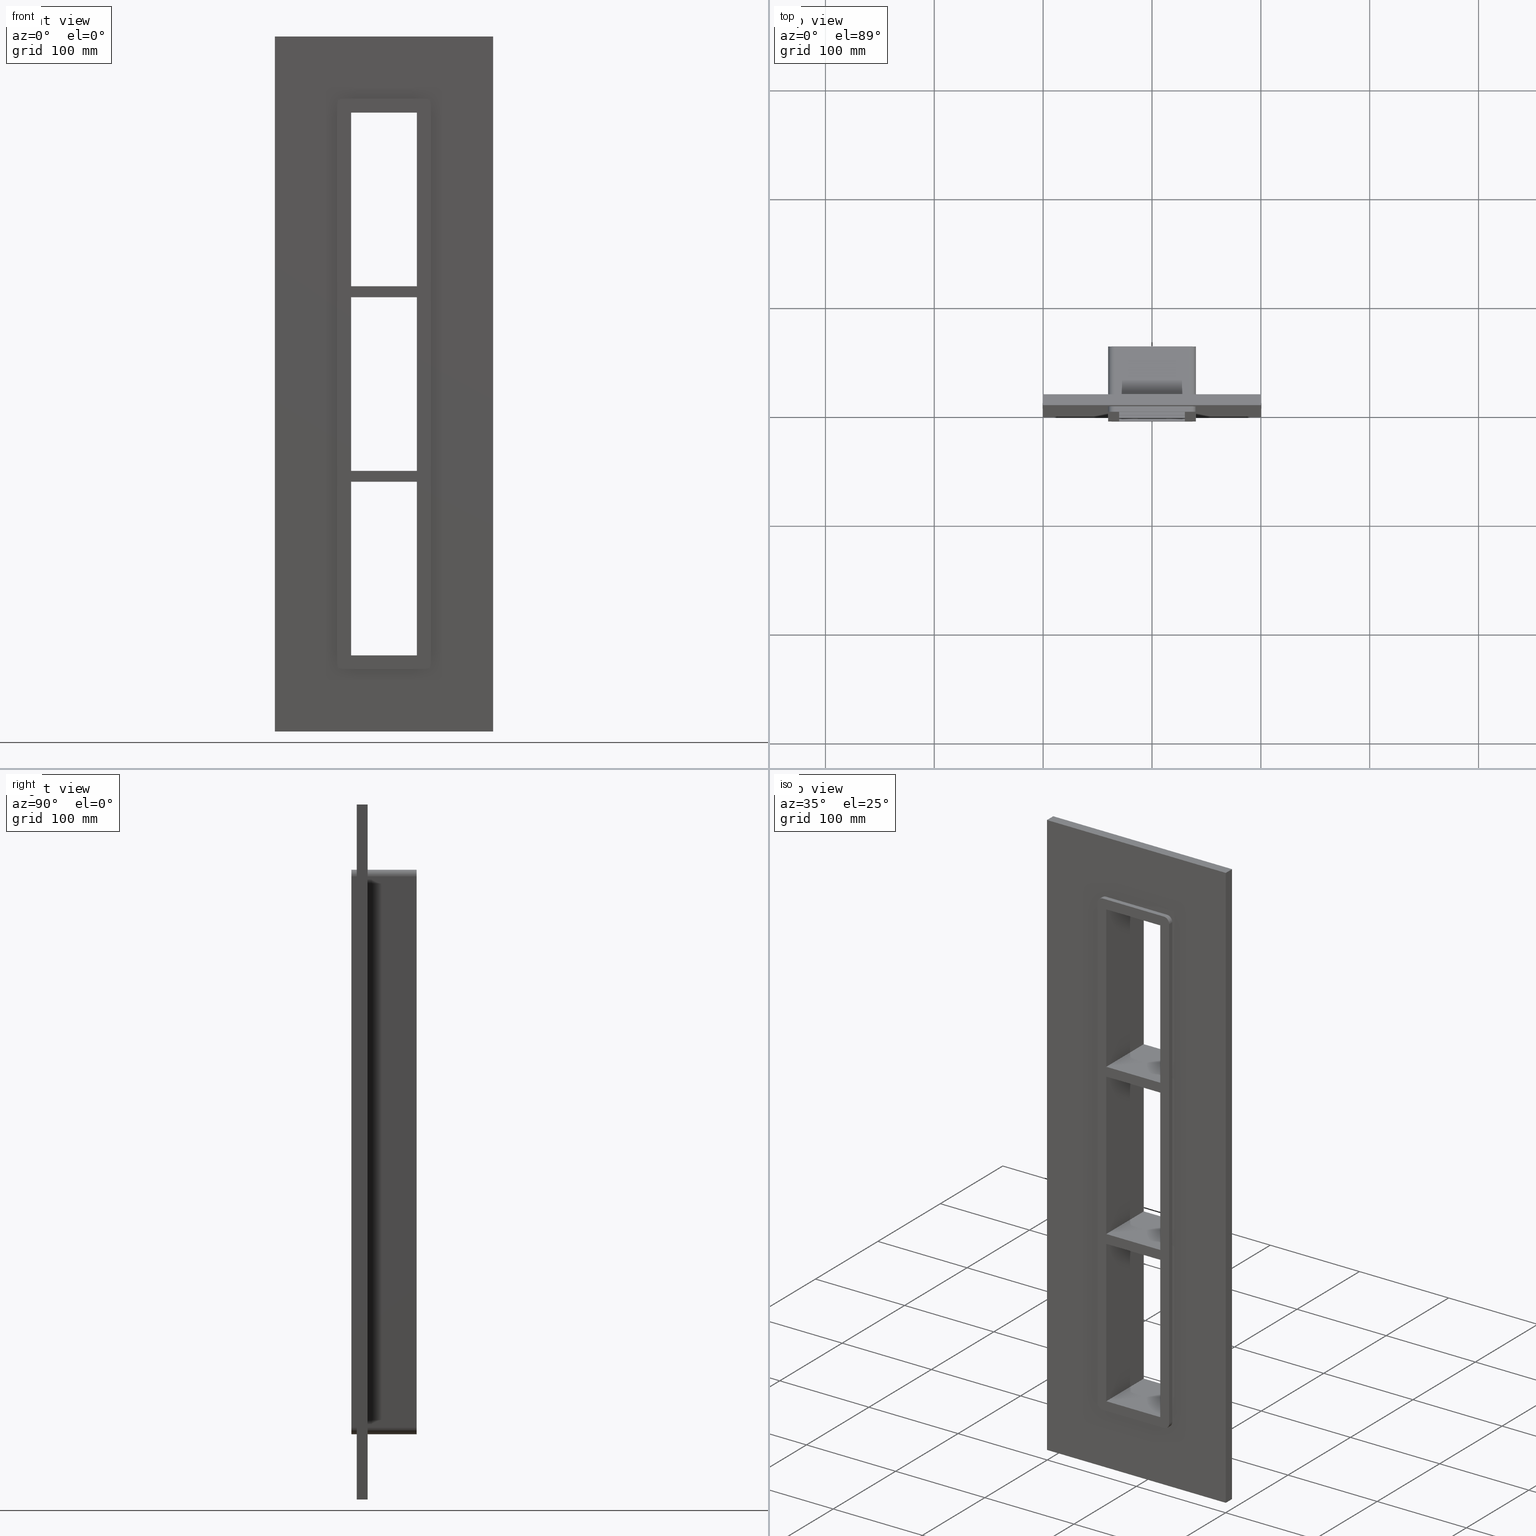
[diagram: canonical four-view strip — front | top / right | iso, engineering-drawing reading convention]
A machine part, canonical four-view strip (front | top / right | iso — engineering-drawing reading convention). The complete STEP part file that produces these views, byte-faithful:
ISO-10303-21;
HEADER;
/****************************************************************
 * Generated by software with PDElib inside                    *
 * PDElib Version v51a, created Wed 11/30/2011                  *
 * ITI Transcendata (http://www.transcendata.com/)              *
 ****************************************************************/
FILE_DESCRIPTION((''),'2;1');
FILE_NAME('C:\\RoxtecConfigurator\\CreatedFiles\\STEP\\SF3+3+3X1.stp','2012-12-06T16:40:32',(''),(''),'Autodesk Inventor 2013','Autodesk Inventor 2013','');
FILE_SCHEMA(('AUTOMOTIVE_DESIGN { 1 0 10303 214 1 1 1 1 }'));
ENDSEC;
DATA;
#5=APPLICATION_CONTEXT('automotive design');
#6=APPLICATION_PROTOCOL_DEFINITION('International Standard','automotive_design',2001,#5);
#7=PRODUCT_CONTEXT('',#5,'mechanical');
#8=PRODUCT('roxtec S_SF_G','roxtec S_SF_G',$,(#7));
#9=PRODUCT_RELATED_PRODUCT_CATEGORY('part',$,(#8));
#10=PRODUCT_DEFINITION_FORMATION('',$,#8);
#11=PRODUCT_DEFINITION_CONTEXT('part definition',#5,'design');
#12=PRODUCT_DEFINITION('',$,#10,#11);
#18=(NAMED_UNIT(*)PLANE_ANGLE_UNIT()SI_UNIT($,.RADIAN.));
#19=DIMENSIONAL_EXPONENTS(0.0,0.0,0.0,0.0,0.0,0.0,0.0);
#20=PLANE_ANGLE_MEASURE_WITH_UNIT(PLANE_ANGLE_MEASURE(0.0174532925),#18);
#24=(CONVERSION_BASED_UNIT('DEGREE',#20)NAMED_UNIT(#19)PLANE_ANGLE_UNIT());
#28=(NAMED_UNIT(*)SI_UNIT($,.STERADIAN.)SOLID_ANGLE_UNIT());
#32=(LENGTH_UNIT()NAMED_UNIT(*)SI_UNIT(.MILLI.,.METRE.));
#34=UNCERTAINTY_MEASURE_WITH_UNIT(LENGTH_MEASURE(0.01),#32,'DISTANCE_ACCURACY_VALUE','');
#36=(GEOMETRIC_REPRESENTATION_CONTEXT(3)GLOBAL_UNCERTAINTY_ASSIGNED_CONTEXT((#34))GLOBAL_UNIT_ASSIGNED_CONTEXT((#24,#28,#32))REPRESENTATION_CONTEXT('None','None'));
#37=AXIS2_PLACEMENT_3D('',#38,#39,#40);
#38=CARTESIAN_POINT('',(0.0,0.0,0.0));
#39=DIRECTION('',(0.0,0.0,1.0));
#40=DIRECTION('',(1.0,0.0,0.0));
#41=SHAPE_REPRESENTATION('',(#37),#36);
#42=PRODUCT_DEFINITION_SHAPE('','',#12);
#43=SHAPE_DEFINITION_REPRESENTATION(#42,#41);
#49=(NAMED_UNIT(*)PLANE_ANGLE_UNIT()SI_UNIT($,.RADIAN.));
#50=DIMENSIONAL_EXPONENTS(0.0,0.0,0.0,0.0,0.0,0.0,0.0);
#51=PLANE_ANGLE_MEASURE_WITH_UNIT(PLANE_ANGLE_MEASURE(0.0174532925),#49);
#55=(CONVERSION_BASED_UNIT('DEGREE',#51)NAMED_UNIT(#50)PLANE_ANGLE_UNIT());
#59=(NAMED_UNIT(*)SI_UNIT($,.STERADIAN.)SOLID_ANGLE_UNIT());
#63=(LENGTH_UNIT()NAMED_UNIT(*)SI_UNIT(.MILLI.,.METRE.));
#65=UNCERTAINTY_MEASURE_WITH_UNIT(LENGTH_MEASURE(0.000001),#63,'DISTANCE_ACCURACY_VALUE','');
#67=(GEOMETRIC_REPRESENTATION_CONTEXT(3)GLOBAL_UNCERTAINTY_ASSIGNED_CONTEXT((#65))GLOBAL_UNIT_ASSIGNED_CONTEXT((#55,#59,#63))REPRESENTATION_CONTEXT('','3D'));
#68=CARTESIAN_POINT('',(30.249999999999986,-5.0,79.750000000000085));
#69=DIRECTION('',(0.0,0.0,-1.0));
#70=DIRECTION('',(-1.0,0.0,0.0));
#71=AXIS2_PLACEMENT_3D('',#68,#69,#70);
#72=PLANE('',#71);
#73=CARTESIAN_POINT('',(30.249999999999986,-5.0,79.750000000000085));
#74=VERTEX_POINT('',#73);
#75=CARTESIAN_POINT('',(-30.250000000002078,-5.0,79.750000000000938));
#76=VERTEX_POINT('',#75);
#77=CARTESIAN_POINT('',(30.249999999999986,-5.0,79.750000000000085));
#78=DIRECTION('',(-1.0,0.0,0.0));
#79=VECTOR('',#78,60.500000000002068);
#80=LINE('',#77,#79);
#81=EDGE_CURVE('',#74,#76,#80,.T.);
#82=ORIENTED_EDGE('',*,*,#81,.T.);
#83=CARTESIAN_POINT('',(-30.250000000002078,55.0,79.750000000000938));
#84=VERTEX_POINT('',#83);
#85=CARTESIAN_POINT('',(-30.250000000000021,55.0,79.750000000000938));
#86=DIRECTION('',(0.0,-1.0,0.0));
#87=VECTOR('',#86,60.0);
#88=LINE('',#85,#87);
#89=EDGE_CURVE('',#84,#76,#88,.T.);
#90=ORIENTED_EDGE('',*,*,#89,.F.);
#91=CARTESIAN_POINT('',(30.249999999999986,55.0,79.750000000000085));
#92=VERTEX_POINT('',#91);
#93=CARTESIAN_POINT('',(30.249999999999986,55.0,79.750000000000085));
#94=DIRECTION('',(-1.0,0.0,0.0));
#95=VECTOR('',#94,60.500000000002068);
#96=LINE('',#93,#95);
#97=EDGE_CURVE('',#92,#84,#96,.T.);
#98=ORIENTED_EDGE('',*,*,#97,.F.);
#99=CARTESIAN_POINT('',(30.249999999999986,-5.0,79.750000000000085));
#100=DIRECTION('',(0.0,1.0,0.0));
#101=VECTOR('',#100,60.0);
#102=LINE('',#99,#101);
#103=EDGE_CURVE('',#74,#92,#102,.T.);
#104=ORIENTED_EDGE('',*,*,#103,.F.);
#105=EDGE_LOOP('',(#82,#90,#98,#104));
#106=FACE_OUTER_BOUND('',#105,.T.);
#107=ADVANCED_FACE('',(#106),#72,.T.);
#108=CARTESIAN_POINT('',(-30.250000000000021,-5.0,89.750000000000085));
#109=DIRECTION('',(0.0,0.0,1.0));
#110=DIRECTION('',(1.0,0.0,0.0));
#111=AXIS2_PLACEMENT_3D('',#108,#109,#110);
#112=PLANE('',#111);
#113=CARTESIAN_POINT('',(-30.250000000000021,-5.0,89.750000000000085));
#114=VERTEX_POINT('',#113);
#115=CARTESIAN_POINT('',(30.250000000000654,-5.0,89.750000000000938));
#116=VERTEX_POINT('',#115);
#117=CARTESIAN_POINT('',(-30.250000000000021,-5.0,89.750000000000085));
#118=DIRECTION('',(1.0,0.0,0.0));
#119=VECTOR('',#118,60.500000000000675);
#120=LINE('',#117,#119);
#121=EDGE_CURVE('',#114,#116,#120,.T.);
#122=ORIENTED_EDGE('',*,*,#121,.T.);
#123=CARTESIAN_POINT('',(30.250000000000654,55.0,89.750000000000938));
#124=VERTEX_POINT('',#123);
#125=CARTESIAN_POINT('',(30.249999999999986,55.0,89.750000000000938));
#126=DIRECTION('',(0.0,-1.0,0.0));
#127=VECTOR('',#126,60.0);
#128=LINE('',#125,#127);
#129=EDGE_CURVE('',#124,#116,#128,.T.);
#130=ORIENTED_EDGE('',*,*,#129,.F.);
#131=CARTESIAN_POINT('',(-30.250000000000021,55.0,89.750000000000085));
#132=VERTEX_POINT('',#131);
#133=CARTESIAN_POINT('',(-30.250000000000021,55.0,89.750000000000085));
#134=DIRECTION('',(1.0,0.0,0.0));
#135=VECTOR('',#134,60.500000000000675);
#136=LINE('',#133,#135);
#137=EDGE_CURVE('',#132,#124,#136,.T.);
#138=ORIENTED_EDGE('',*,*,#137,.F.);
#139=CARTESIAN_POINT('',(-30.250000000000021,-5.0,89.750000000000085));
#140=DIRECTION('',(0.0,1.0,0.0));
#141=VECTOR('',#140,60.0);
#142=LINE('',#139,#141);
#143=EDGE_CURVE('',#114,#132,#142,.T.);
#144=ORIENTED_EDGE('',*,*,#143,.F.);
#145=EDGE_LOOP('',(#122,#130,#138,#144));
#146=FACE_OUTER_BOUND('',#145,.T.);
#147=ADVANCED_FACE('',(#146),#112,.T.);
#148=CARTESIAN_POINT('',(-30.250000000000021,0.0,-249.24999999999997));
#149=DIRECTION('',(-1.0,0.0,0.0));
#150=DIRECTION('',(0.0,0.0,1.0));
#151=AXIS2_PLACEMENT_3D('',#148,#149,#150);
#152=PLANE('',#151);
#153=ORIENTED_EDGE('',*,*,#143,.T.);
#154=CARTESIAN_POINT('',(-30.250000000000021,55.0,249.25000000000006));
#155=VERTEX_POINT('',#154);
#156=CARTESIAN_POINT('',(-30.250000000000021,55.0,249.25000000000006));
#157=DIRECTION('',(0.0,0.0,-1.0));
#158=VECTOR('',#157,159.49999999999997);
#159=LINE('',#156,#158);
#160=EDGE_CURVE('',#155,#132,#159,.T.);
#161=ORIENTED_EDGE('',*,*,#160,.F.);
#162=CARTESIAN_POINT('',(-30.250000000000021,-5.0,249.25000000000006));
#163=VERTEX_POINT('',#162);
#164=CARTESIAN_POINT('',(-30.250000000000021,-5.0,249.25000000000006));
#165=DIRECTION('',(0.0,1.0,0.0));
#166=VECTOR('',#165,60.0);
#167=LINE('',#164,#166);
#168=EDGE_CURVE('',#163,#155,#167,.T.);
#169=ORIENTED_EDGE('',*,*,#168,.F.);
#170=CARTESIAN_POINT('',(-30.250000000000021,-5.0,89.750000000000085));
#171=DIRECTION('',(0.0,0.0,1.0));
#172=VECTOR('',#171,159.49999999999997);
#173=LINE('',#170,#172);
#174=EDGE_CURVE('',#114,#163,#173,.T.);
#175=ORIENTED_EDGE('',*,*,#174,.F.);
#176=EDGE_LOOP('',(#153,#161,#169,#175));
#177=FACE_OUTER_BOUND('',#176,.T.);
#178=ADVANCED_FACE('',(#177),#152,.F.);
#179=CARTESIAN_POINT('',(30.249999999999986,0.0,249.25000000000006));
#180=DIRECTION('',(1.0,0.0,0.0));
#181=DIRECTION('',(0.0,0.0,-1.0));
#182=AXIS2_PLACEMENT_3D('',#179,#180,#181);
#183=PLANE('',#182);
#184=ORIENTED_EDGE('',*,*,#103,.T.);
#185=CARTESIAN_POINT('',(30.250000000000654,55.0,-79.749999999999091));
#186=VERTEX_POINT('',#185);
#187=CARTESIAN_POINT('',(30.249999999999986,55.0,-79.749999999999091));
#188=DIRECTION('',(0.0,0.0,1.0));
#189=VECTOR('',#188,159.49999999999918);
#190=LINE('',#187,#189);
#191=EDGE_CURVE('',#186,#92,#190,.T.);
#192=ORIENTED_EDGE('',*,*,#191,.F.);
#193=CARTESIAN_POINT('',(30.250000000000654,-5.0,-79.749999999999091));
#194=VERTEX_POINT('',#193);
#195=CARTESIAN_POINT('',(30.249999999999986,55.0,-79.749999999999091));
#196=DIRECTION('',(0.0,-1.0,0.0));
#197=VECTOR('',#196,60.0);
#198=LINE('',#195,#197);
#199=EDGE_CURVE('',#186,#194,#198,.T.);
#200=ORIENTED_EDGE('',*,*,#199,.T.);
#201=CARTESIAN_POINT('',(30.249999999999986,-5.0,79.750000000000085));
#202=DIRECTION('',(0.0,0.0,-1.0));
#203=VECTOR('',#202,159.49999999999918);
#204=LINE('',#201,#203);
#205=EDGE_CURVE('',#74,#194,#204,.T.);
#206=ORIENTED_EDGE('',*,*,#205,.F.);
#207=EDGE_LOOP('',(#184,#192,#200,#206));
#208=FACE_OUTER_BOUND('',#207,.T.);
#209=ADVANCED_FACE('',(#208),#183,.F.);
#210=CARTESIAN_POINT('',(30.249999999999986,0.0,249.25000000000006));
#211=DIRECTION('',(1.0,0.0,0.0));
#212=DIRECTION('',(0.0,0.0,-1.0));
#213=AXIS2_PLACEMENT_3D('',#210,#211,#212);
#214=PLANE('',#213);
#215=ORIENTED_EDGE('',*,*,#129,.T.);
#216=CARTESIAN_POINT('',(30.249999999999986,-5.0,249.25000000000006));
#217=VERTEX_POINT('',#216);
#218=CARTESIAN_POINT('',(30.249999999999986,-5.0,249.25000000000006));
#219=DIRECTION('',(0.0,0.0,-1.0));
#220=VECTOR('',#219,159.49999999999912);
#221=LINE('',#218,#220);
#222=EDGE_CURVE('',#217,#116,#221,.T.);
#223=ORIENTED_EDGE('',*,*,#222,.F.);
#224=CARTESIAN_POINT('',(30.249999999999986,55.0,249.25000000000006));
#225=VERTEX_POINT('',#224);
#226=CARTESIAN_POINT('',(30.249999999999986,-5.0,249.25000000000006));
#227=DIRECTION('',(0.0,1.0,0.0));
#228=VECTOR('',#227,60.0);
#229=LINE('',#226,#228);
#230=EDGE_CURVE('',#217,#225,#229,.T.);
#231=ORIENTED_EDGE('',*,*,#230,.T.);
#232=CARTESIAN_POINT('',(30.249999999999986,55.0,89.750000000000938));
#233=DIRECTION('',(0.0,0.0,1.0));
#234=VECTOR('',#233,159.49999999999912);
#235=LINE('',#232,#234);
#236=EDGE_CURVE('',#124,#225,#235,.T.);
#237=ORIENTED_EDGE('',*,*,#236,.F.);
#238=EDGE_LOOP('',(#215,#223,#231,#237));
#239=FACE_OUTER_BOUND('',#238,.T.);
#240=ADVANCED_FACE('',(#239),#214,.F.);
#241=CARTESIAN_POINT('',(30.249999999999986,-5.0,-89.749999999999943));
#242=DIRECTION('',(0.0,0.0,-1.0));
#243=DIRECTION('',(-1.0,0.0,0.0));
#244=AXIS2_PLACEMENT_3D('',#241,#242,#243);
#245=PLANE('',#244);
#246=CARTESIAN_POINT('',(30.249999999999986,-5.0,-89.749999999999943));
#247=VERTEX_POINT('',#246);
#248=CARTESIAN_POINT('',(-30.250000000002078,-5.0,-89.749999999999091));
#249=VERTEX_POINT('',#248);
#250=CARTESIAN_POINT('',(30.249999999999986,-5.0,-89.749999999999943));
#251=DIRECTION('',(-1.0,0.0,0.0));
#252=VECTOR('',#251,60.500000000002068);
#253=LINE('',#250,#252);
#254=EDGE_CURVE('',#247,#249,#253,.T.);
#255=ORIENTED_EDGE('',*,*,#254,.T.);
#256=CARTESIAN_POINT('',(-30.250000000002078,55.0,-89.749999999999091));
#257=VERTEX_POINT('',#256);
#258=CARTESIAN_POINT('',(-30.250000000000021,55.0,-89.749999999999091));
#259=DIRECTION('',(0.0,-1.0,0.0));
#260=VECTOR('',#259,60.0);
#261=LINE('',#258,#260);
#262=EDGE_CURVE('',#257,#249,#261,.T.);
#263=ORIENTED_EDGE('',*,*,#262,.F.);
#264=CARTESIAN_POINT('',(30.249999999999986,55.0,-89.749999999999943));
#265=VERTEX_POINT('',#264);
#266=CARTESIAN_POINT('',(30.249999999999986,55.0,-89.749999999999943));
#267=DIRECTION('',(-1.0,0.0,0.0));
#268=VECTOR('',#267,60.500000000002068);
#269=LINE('',#266,#268);
#270=EDGE_CURVE('',#265,#257,#269,.T.);
#271=ORIENTED_EDGE('',*,*,#270,.F.);
#272=CARTESIAN_POINT('',(30.249999999999986,-5.0,-89.749999999999943));
#273=DIRECTION('',(0.0,1.0,0.0));
#274=VECTOR('',#273,60.0);
#275=LINE('',#272,#274);
#276=EDGE_CURVE('',#247,#265,#275,.T.);
#277=ORIENTED_EDGE('',*,*,#276,.F.);
#278=EDGE_LOOP('',(#255,#263,#271,#277));
#279=FACE_OUTER_BOUND('',#278,.T.);
#280=ADVANCED_FACE('',(#279),#245,.T.);
#281=CARTESIAN_POINT('',(-30.250000000000021,-5.0,-79.749999999999943));
#282=DIRECTION('',(0.0,0.0,1.0));
#283=DIRECTION('',(1.0,0.0,0.0));
#284=AXIS2_PLACEMENT_3D('',#281,#282,#283);
#285=PLANE('',#284);
#286=CARTESIAN_POINT('',(-30.250000000000021,-5.0,-79.749999999999943));
#287=VERTEX_POINT('',#286);
#288=CARTESIAN_POINT('',(-30.250000000000021,-5.0,-79.749999999999943));
#289=DIRECTION('',(1.0,0.0,0.0));
#290=VECTOR('',#289,60.500000000000675);
#291=LINE('',#288,#290);
#292=EDGE_CURVE('',#287,#194,#291,.T.);
#293=ORIENTED_EDGE('',*,*,#292,.T.);
#294=ORIENTED_EDGE('',*,*,#199,.F.);
#295=CARTESIAN_POINT('',(-30.250000000000021,55.0,-79.749999999999943));
#296=VERTEX_POINT('',#295);
#297=CARTESIAN_POINT('',(-30.250000000000021,55.0,-79.749999999999943));
#298=DIRECTION('',(1.0,0.0,0.0));
#299=VECTOR('',#298,60.500000000000675);
#300=LINE('',#297,#299);
#301=EDGE_CURVE('',#296,#186,#300,.T.);
#302=ORIENTED_EDGE('',*,*,#301,.F.);
#303=CARTESIAN_POINT('',(-30.250000000000021,-5.0,-79.749999999999943));
#304=DIRECTION('',(0.0,1.0,0.0));
#305=VECTOR('',#304,60.0);
#306=LINE('',#303,#305);
#307=EDGE_CURVE('',#287,#296,#306,.T.);
#308=ORIENTED_EDGE('',*,*,#307,.F.);
#309=EDGE_LOOP('',(#293,#294,#302,#308));
#310=FACE_OUTER_BOUND('',#309,.T.);
#311=ADVANCED_FACE('',(#310),#285,.T.);
#312=CARTESIAN_POINT('',(-30.250000000000021,0.0,-249.24999999999997));
#313=DIRECTION('',(-1.0,0.0,0.0));
#314=DIRECTION('',(0.0,0.0,1.0));
#315=AXIS2_PLACEMENT_3D('',#312,#313,#314);
#316=PLANE('',#315);
#317=ORIENTED_EDGE('',*,*,#89,.T.);
#318=CARTESIAN_POINT('',(-30.250000000000021,-5.0,-79.749999999999943));
#319=DIRECTION('',(0.0,0.0,1.0));
#320=VECTOR('',#319,159.50000000000088);
#321=LINE('',#318,#320);
#322=EDGE_CURVE('',#287,#76,#321,.T.);
#323=ORIENTED_EDGE('',*,*,#322,.F.);
#324=ORIENTED_EDGE('',*,*,#307,.T.);
#325=CARTESIAN_POINT('',(-30.250000000000021,55.0,79.750000000000938));
#326=DIRECTION('',(0.0,0.0,-1.0));
#327=VECTOR('',#326,159.50000000000088);
#328=LINE('',#325,#327);
#329=EDGE_CURVE('',#84,#296,#328,.T.);
#330=ORIENTED_EDGE('',*,*,#329,.F.);
#331=EDGE_LOOP('',(#317,#323,#324,#330));
#332=FACE_OUTER_BOUND('',#331,.T.);
#333=ADVANCED_FACE('',(#332),#316,.F.);
#334=CARTESIAN_POINT('',(30.249999999999986,0.0,249.25000000000006));
#335=DIRECTION('',(1.0,0.0,0.0));
#336=DIRECTION('',(0.0,0.0,-1.0));
#337=AXIS2_PLACEMENT_3D('',#334,#335,#336);
#338=PLANE('',#337);
#339=ORIENTED_EDGE('',*,*,#276,.T.);
#340=CARTESIAN_POINT('',(30.249999999999986,55.0,-249.24999999999997));
#341=VERTEX_POINT('',#340);
#342=CARTESIAN_POINT('',(30.249999999999986,55.0,-249.24999999999994));
#343=DIRECTION('',(0.0,0.0,1.0));
#344=VECTOR('',#343,159.5);
#345=LINE('',#342,#344);
#346=EDGE_CURVE('',#341,#265,#345,.T.);
#347=ORIENTED_EDGE('',*,*,#346,.F.);
#348=CARTESIAN_POINT('',(30.249999999999986,-5.0,-249.24999999999997));
#349=VERTEX_POINT('',#348);
#350=CARTESIAN_POINT('',(30.249999999999986,55.0,-249.24999999999997));
#351=DIRECTION('',(0.0,-1.0,0.0));
#352=VECTOR('',#351,60.0);
#353=LINE('',#350,#352);
#354=EDGE_CURVE('',#341,#349,#353,.T.);
#355=ORIENTED_EDGE('',*,*,#354,.T.);
#356=CARTESIAN_POINT('',(30.249999999999986,-5.0,-89.749999999999943));
#357=DIRECTION('',(0.0,0.0,-1.0));
#358=VECTOR('',#357,159.5);
#359=LINE('',#356,#358);
#360=EDGE_CURVE('',#247,#349,#359,.T.);
#361=ORIENTED_EDGE('',*,*,#360,.F.);
#362=EDGE_LOOP('',(#339,#347,#355,#361));
#363=FACE_OUTER_BOUND('',#362,.T.);
#364=ADVANCED_FACE('',(#363),#338,.F.);
#365=CARTESIAN_POINT('',(5.081354E-015,10.0,1.524406E-014));
#366=DIRECTION('',(0.0,1.0,0.0));
#367=DIRECTION('',(0.0,0.0,1.0));
#368=AXIS2_PLACEMENT_3D('',#365,#366,#367);
#369=PLANE('',#368);
#370=CARTESIAN_POINT('',(100.24999999999999,10.0,-319.25));
#371=VERTEX_POINT('',#370);
#372=CARTESIAN_POINT('',(-100.24999999999999,10.0,-319.25));
#373=VERTEX_POINT('',#372);
#374=CARTESIAN_POINT('',(100.24999999999999,10.0,-319.25));
#375=DIRECTION('',(-1.0,0.0,0.0));
#376=VECTOR('',#375,200.49999999999997);
#377=LINE('',#374,#376);
#378=EDGE_CURVE('',#371,#373,#377,.T.);
#379=ORIENTED_EDGE('',*,*,#378,.T.);
#380=CARTESIAN_POINT('',(-100.24999999999999,10.0,319.25000000000006));
#381=VERTEX_POINT('',#380);
#382=CARTESIAN_POINT('',(-100.24999999999997,10.0,-319.25));
#383=DIRECTION('',(0.0,0.0,1.0));
#384=VECTOR('',#383,638.50000000000011);
#385=LINE('',#382,#384);
#386=EDGE_CURVE('',#373,#381,#385,.T.);
#387=ORIENTED_EDGE('',*,*,#386,.T.);
#388=CARTESIAN_POINT('',(100.24999999999999,10.0,319.25000000000006));
#389=VERTEX_POINT('',#388);
#390=CARTESIAN_POINT('',(-100.24999999999997,10.0,319.25000000000006));
#391=DIRECTION('',(1.0,0.0,0.0));
#392=VECTOR('',#391,200.49999999999997);
#393=LINE('',#390,#392);
#394=EDGE_CURVE('',#381,#389,#393,.T.);
#395=ORIENTED_EDGE('',*,*,#394,.T.);
#396=CARTESIAN_POINT('',(100.24999999999999,10.0,319.25000000000006));
#397=DIRECTION('',(0.0,0.0,-1.0));
#398=VECTOR('',#397,638.50000000000011);
#399=LINE('',#396,#398);
#400=EDGE_CURVE('',#389,#371,#399,.T.);
#401=ORIENTED_EDGE('',*,*,#400,.T.);
#402=EDGE_LOOP('',(#379,#387,#395,#401));
#403=FACE_OUTER_BOUND('',#402,.T.);
#404=CARTESIAN_POINT('',(34.250000000000007,10.0,259.25000000000006));
#405=VERTEX_POINT('',#404);
#406=CARTESIAN_POINT('',(40.249999999999986,10.0,253.25000000000003));
#407=VERTEX_POINT('',#406);
#408=CARTESIAN_POINT('',(34.250000000000007,10.0,253.25000000000003));
#409=DIRECTION('',(0.0,1.0,0.0));
#410=DIRECTION('',(0.0,0.0,1.0));
#411=AXIS2_PLACEMENT_3D('',#408,#409,#410);
#412=CIRCLE('',#411,6.000000000000014);
#413=EDGE_CURVE('',#405,#407,#412,.T.);
#414=ORIENTED_EDGE('',*,*,#413,.F.);
#415=CARTESIAN_POINT('',(-34.250000000000043,10.0,259.25000000000006));
#416=VERTEX_POINT('',#415);
#417=CARTESIAN_POINT('',(-34.250000000000043,10.0,259.25000000000006));
#418=DIRECTION('',(1.0,0.0,0.0));
#419=VECTOR('',#418,68.500000000000057);
#420=LINE('',#417,#419);
#421=EDGE_CURVE('',#416,#405,#420,.T.);
#422=ORIENTED_EDGE('',*,*,#421,.F.);
#423=CARTESIAN_POINT('',(-40.250000000000021,10.0,253.25000000000003));
#424=VERTEX_POINT('',#423);
#425=CARTESIAN_POINT('',(-34.250000000000043,10.0,253.25000000000003));
#426=DIRECTION('',(0.0,1.0,0.0));
#427=DIRECTION('',(-1.0,0.0,0.0));
#428=AXIS2_PLACEMENT_3D('',#425,#426,#427);
#429=CIRCLE('',#428,6.000000000000014);
#430=EDGE_CURVE('',#424,#416,#429,.T.);
#431=ORIENTED_EDGE('',*,*,#430,.F.);
#432=CARTESIAN_POINT('',(-40.250000000000021,10.0,-253.24999999999989));
#433=VERTEX_POINT('',#432);
#434=CARTESIAN_POINT('',(-40.250000000000021,10.0,-253.24999999999989));
#435=DIRECTION('',(0.0,0.0,1.0));
#436=VECTOR('',#435,506.49999999999994);
#437=LINE('',#434,#436);
#438=EDGE_CURVE('',#433,#424,#437,.T.);
#439=ORIENTED_EDGE('',*,*,#438,.F.);
#440=CARTESIAN_POINT('',(-34.250000000000043,10.0,-259.25));
#441=VERTEX_POINT('',#440);
#442=CARTESIAN_POINT('',(-34.250000000000043,10.0,-253.24999999999991));
#443=DIRECTION('',(0.0,1.0,0.0));
#444=DIRECTION('',(0.0,0.0,-1.0));
#445=AXIS2_PLACEMENT_3D('',#442,#443,#444);
#446=CIRCLE('',#445,6.000000000000013);
#447=EDGE_CURVE('',#441,#433,#446,.T.);
#448=ORIENTED_EDGE('',*,*,#447,.F.);
#449=CARTESIAN_POINT('',(34.250000000000007,10.0,-259.25));
#450=VERTEX_POINT('',#449);
#451=CARTESIAN_POINT('',(34.250000000000007,10.0,-259.25));
#452=DIRECTION('',(-1.0,0.0,0.0));
#453=VECTOR('',#452,68.500000000000043);
#454=LINE('',#451,#453);
#455=EDGE_CURVE('',#450,#441,#454,.T.);
#456=ORIENTED_EDGE('',*,*,#455,.F.);
#457=CARTESIAN_POINT('',(40.249999999999986,10.0,-253.24999999999989));
#458=VERTEX_POINT('',#457);
#459=CARTESIAN_POINT('',(34.250000000000007,10.0,-253.24999999999991));
#460=DIRECTION('',(0.0,1.0,0.0));
#461=DIRECTION('',(1.0,0.0,0.0));
#462=AXIS2_PLACEMENT_3D('',#459,#460,#461);
#463=CIRCLE('',#462,6.000000000000014);
#464=EDGE_CURVE('',#458,#450,#463,.T.);
#465=ORIENTED_EDGE('',*,*,#464,.F.);
#466=CARTESIAN_POINT('',(40.249999999999986,10.0,253.25000000000003));
#467=DIRECTION('',(0.0,0.0,-1.0));
#468=VECTOR('',#467,506.49999999999989);
#469=LINE('',#466,#468);
#470=EDGE_CURVE('',#407,#458,#469,.T.);
#471=ORIENTED_EDGE('',*,*,#470,.F.);
#472=EDGE_LOOP('',(#414,#422,#431,#439,#448,#456,#465,#471));
#473=FACE_BOUND('',#472,.T.);
#474=ADVANCED_FACE('',(#403,#473),#369,.T.);
#475=CARTESIAN_POINT('',(5.081354E-015,0.0,1.524406E-014));
#476=DIRECTION('',(0.0,1.0,0.0));
#477=DIRECTION('',(0.0,0.0,1.0));
#478=AXIS2_PLACEMENT_3D('',#475,#476,#477);
#479=PLANE('',#478);
#480=CARTESIAN_POINT('',(100.24999999999999,0.0,-319.25));
#481=VERTEX_POINT('',#480);
#482=CARTESIAN_POINT('',(-100.24999999999997,0.0,-319.25));
#483=VERTEX_POINT('',#482);
#484=CARTESIAN_POINT('',(100.24999999999999,0.0,-319.25));
#485=DIRECTION('',(-1.0,0.0,0.0));
#486=VECTOR('',#485,200.49999999999997);
#487=LINE('',#484,#486);
#488=EDGE_CURVE('',#481,#483,#487,.T.);
#489=ORIENTED_EDGE('',*,*,#488,.F.);
#490=CARTESIAN_POINT('',(100.24999999999999,0.0,319.25000000000006));
#491=VERTEX_POINT('',#490);
#492=CARTESIAN_POINT('',(100.24999999999999,0.0,319.25000000000006));
#493=DIRECTION('',(0.0,0.0,-1.0));
#494=VECTOR('',#493,638.50000000000011);
#495=LINE('',#492,#494);
#496=EDGE_CURVE('',#491,#481,#495,.T.);
#497=ORIENTED_EDGE('',*,*,#496,.F.);
#498=CARTESIAN_POINT('',(-100.24999999999997,0.0,319.25000000000006));
#499=VERTEX_POINT('',#498);
#500=CARTESIAN_POINT('',(-100.24999999999997,0.0,319.25000000000006));
#501=DIRECTION('',(1.0,0.0,0.0));
#502=VECTOR('',#501,200.49999999999997);
#503=LINE('',#500,#502);
#504=EDGE_CURVE('',#499,#491,#503,.T.);
#505=ORIENTED_EDGE('',*,*,#504,.F.);
#506=CARTESIAN_POINT('',(-100.24999999999997,0.0,-319.25));
#507=DIRECTION('',(0.0,0.0,1.0));
#508=VECTOR('',#507,638.50000000000011);
#509=LINE('',#506,#508);
#510=EDGE_CURVE('',#483,#499,#509,.T.);
#511=ORIENTED_EDGE('',*,*,#510,.F.);
#512=EDGE_LOOP('',(#489,#497,#505,#511));
#513=FACE_OUTER_BOUND('',#512,.T.);
#514=CARTESIAN_POINT('',(40.249999999999986,0.0,253.25000000000003));
#515=VERTEX_POINT('',#514);
#516=CARTESIAN_POINT('',(34.250000000000007,0.0,259.25000000000006));
#517=VERTEX_POINT('',#516);
#518=CARTESIAN_POINT('',(34.250000000000007,0.0,253.25000000000003));
#519=DIRECTION('',(0.0,-1.0,0.0));
#520=DIRECTION('',(0.0,0.0,1.0));
#521=AXIS2_PLACEMENT_3D('',#518,#519,#520);
#522=CIRCLE('',#521,6.000000000000014);
#523=EDGE_CURVE('',#515,#517,#522,.T.);
#524=ORIENTED_EDGE('',*,*,#523,.F.);
#525=CARTESIAN_POINT('',(40.249999999999986,0.0,-253.24999999999989));
#526=VERTEX_POINT('',#525);
#527=CARTESIAN_POINT('',(40.249999999999986,0.0,-253.24999999999989));
#528=DIRECTION('',(0.0,0.0,1.0));
#529=VECTOR('',#528,506.49999999999989);
#530=LINE('',#527,#529);
#531=EDGE_CURVE('',#526,#515,#530,.T.);
#532=ORIENTED_EDGE('',*,*,#531,.F.);
#533=CARTESIAN_POINT('',(34.250000000000007,0.0,-259.25));
#534=VERTEX_POINT('',#533);
#535=CARTESIAN_POINT('',(34.250000000000007,0.0,-253.24999999999991));
#536=DIRECTION('',(0.0,-1.0,0.0));
#537=DIRECTION('',(1.0,0.0,0.0));
#538=AXIS2_PLACEMENT_3D('',#535,#536,#537);
#539=CIRCLE('',#538,6.000000000000014);
#540=EDGE_CURVE('',#534,#526,#539,.T.);
#541=ORIENTED_EDGE('',*,*,#540,.F.);
#542=CARTESIAN_POINT('',(-34.250000000000043,0.0,-259.25));
#543=VERTEX_POINT('',#542);
#544=CARTESIAN_POINT('',(-34.250000000000036,0.0,-259.25));
#545=DIRECTION('',(1.0,0.0,0.0));
#546=VECTOR('',#545,68.500000000000043);
#547=LINE('',#544,#546);
#548=EDGE_CURVE('',#543,#534,#547,.T.);
#549=ORIENTED_EDGE('',*,*,#548,.F.);
#550=CARTESIAN_POINT('',(-40.250000000000021,0.0,-253.24999999999989));
#551=VERTEX_POINT('',#550);
#552=CARTESIAN_POINT('',(-34.250000000000043,0.0,-253.24999999999991));
#553=DIRECTION('',(0.0,-1.0,0.0));
#554=DIRECTION('',(0.0,0.0,-1.0));
#555=AXIS2_PLACEMENT_3D('',#552,#553,#554);
#556=CIRCLE('',#555,6.000000000000013);
#557=EDGE_CURVE('',#551,#543,#556,.T.);
#558=ORIENTED_EDGE('',*,*,#557,.F.);
#559=CARTESIAN_POINT('',(-40.250000000000021,0.0,253.25000000000003));
#560=VERTEX_POINT('',#559);
#561=CARTESIAN_POINT('',(-40.250000000000021,0.0,253.25000000000006));
#562=DIRECTION('',(0.0,0.0,-1.0));
#563=VECTOR('',#562,506.49999999999994);
#564=LINE('',#561,#563);
#565=EDGE_CURVE('',#560,#551,#564,.T.);
#566=ORIENTED_EDGE('',*,*,#565,.F.);
#567=CARTESIAN_POINT('',(-34.250000000000043,0.0,259.25000000000006));
#568=VERTEX_POINT('',#567);
#569=CARTESIAN_POINT('',(-34.250000000000043,0.0,253.25000000000003));
#570=DIRECTION('',(0.0,-1.0,0.0));
#571=DIRECTION('',(-1.0,0.0,0.0));
#572=AXIS2_PLACEMENT_3D('',#569,#570,#571);
#573=CIRCLE('',#572,6.000000000000014);
#574=EDGE_CURVE('',#568,#560,#573,.T.);
#575=ORIENTED_EDGE('',*,*,#574,.F.);
#576=CARTESIAN_POINT('',(34.250000000000014,0.0,259.25000000000006));
#577=DIRECTION('',(-1.0,0.0,0.0));
#578=VECTOR('',#577,68.500000000000057);
#579=LINE('',#576,#578);
#580=EDGE_CURVE('',#517,#568,#579,.T.);
#581=ORIENTED_EDGE('',*,*,#580,.F.);
#582=EDGE_LOOP('',(#524,#532,#541,#549,#558,#566,#575,#581));
#583=FACE_BOUND('',#582,.T.);
#584=ADVANCED_FACE('',(#513,#583),#479,.F.);
#585=CARTESIAN_POINT('',(100.24999999999999,0.0,319.25000000000006));
#586=DIRECTION('',(1.0,0.0,0.0));
#587=DIRECTION('',(0.0,0.0,-1.0));
#588=AXIS2_PLACEMENT_3D('',#585,#586,#587);
#589=PLANE('',#588);
#590=ORIENTED_EDGE('',*,*,#496,.T.);
#591=CARTESIAN_POINT('',(100.24999999999999,0.0,-319.25));
#592=DIRECTION('',(0.0,1.0,0.0));
#593=VECTOR('',#592,10.0);
#594=LINE('',#591,#593);
#595=EDGE_CURVE('',#481,#371,#594,.T.);
#596=ORIENTED_EDGE('',*,*,#595,.T.);
#597=ORIENTED_EDGE('',*,*,#400,.F.);
#598=CARTESIAN_POINT('',(100.24999999999999,0.0,319.25000000000006));
#599=DIRECTION('',(0.0,1.0,0.0));
#600=VECTOR('',#599,10.0);
#601=LINE('',#598,#600);
#602=EDGE_CURVE('',#491,#389,#601,.T.);
#603=ORIENTED_EDGE('',*,*,#602,.F.);
#604=EDGE_LOOP('',(#590,#596,#597,#603));
#605=FACE_OUTER_BOUND('',#604,.T.);
#606=ADVANCED_FACE('',(#605),#589,.T.);
#607=CARTESIAN_POINT('',(-100.24999999999997,0.0,319.25000000000006));
#608=DIRECTION('',(0.0,0.0,1.0));
#609=DIRECTION('',(1.0,0.0,0.0));
#610=AXIS2_PLACEMENT_3D('',#607,#608,#609);
#611=PLANE('',#610);
#612=ORIENTED_EDGE('',*,*,#504,.T.);
#613=ORIENTED_EDGE('',*,*,#602,.T.);
#614=ORIENTED_EDGE('',*,*,#394,.F.);
#615=CARTESIAN_POINT('',(-100.24999999999997,0.0,319.25000000000006));
#616=DIRECTION('',(0.0,1.0,0.0));
#617=VECTOR('',#616,10.0);
#618=LINE('',#615,#617);
#619=EDGE_CURVE('',#499,#381,#618,.T.);
#620=ORIENTED_EDGE('',*,*,#619,.F.);
#621=EDGE_LOOP('',(#612,#613,#614,#620));
#622=FACE_OUTER_BOUND('',#621,.T.);
#623=ADVANCED_FACE('',(#622),#611,.T.);
#624=CARTESIAN_POINT('',(-100.24999999999997,0.0,-319.25));
#625=DIRECTION('',(-1.0,0.0,0.0));
#626=DIRECTION('',(0.0,0.0,1.0));
#627=AXIS2_PLACEMENT_3D('',#624,#625,#626);
#628=PLANE('',#627);
#629=ORIENTED_EDGE('',*,*,#510,.T.);
#630=ORIENTED_EDGE('',*,*,#619,.T.);
#631=ORIENTED_EDGE('',*,*,#386,.F.);
#632=CARTESIAN_POINT('',(-100.24999999999997,0.0,-319.25));
#633=DIRECTION('',(0.0,1.0,0.0));
#634=VECTOR('',#633,10.0);
#635=LINE('',#632,#634);
#636=EDGE_CURVE('',#483,#373,#635,.T.);
#637=ORIENTED_EDGE('',*,*,#636,.F.);
#638=EDGE_LOOP('',(#629,#630,#631,#637));
#639=FACE_OUTER_BOUND('',#638,.T.);
#640=ADVANCED_FACE('',(#639),#628,.T.);
#641=CARTESIAN_POINT('',(100.24999999999999,0.0,-319.25));
#642=DIRECTION('',(0.0,0.0,-1.0));
#643=DIRECTION('',(-1.0,0.0,0.0));
#644=AXIS2_PLACEMENT_3D('',#641,#642,#643);
#645=PLANE('',#644);
#646=ORIENTED_EDGE('',*,*,#488,.T.);
#647=ORIENTED_EDGE('',*,*,#636,.T.);
#648=ORIENTED_EDGE('',*,*,#378,.F.);
#649=ORIENTED_EDGE('',*,*,#595,.F.);
#650=EDGE_LOOP('',(#646,#647,#648,#649));
#651=FACE_OUTER_BOUND('',#650,.T.);
#652=ADVANCED_FACE('',(#651),#645,.T.);
#653=CARTESIAN_POINT('',(-30.250000000000021,0.0,-249.24999999999997));
#654=DIRECTION('',(-1.0,0.0,0.0));
#655=DIRECTION('',(0.0,0.0,1.0));
#656=AXIS2_PLACEMENT_3D('',#653,#654,#655);
#657=PLANE('',#656);
#658=ORIENTED_EDGE('',*,*,#262,.T.);
#659=CARTESIAN_POINT('',(-30.250000000000021,-5.0,-249.24999999999997));
#660=VERTEX_POINT('',#659);
#661=CARTESIAN_POINT('',(-30.250000000000021,-5.0,-249.24999999999997));
#662=DIRECTION('',(0.0,0.0,1.0));
#663=VECTOR('',#662,159.50000000000088);
#664=LINE('',#661,#663);
#665=EDGE_CURVE('',#660,#249,#664,.T.);
#666=ORIENTED_EDGE('',*,*,#665,.F.);
#667=CARTESIAN_POINT('',(-30.250000000000021,55.0,-249.24999999999997));
#668=VERTEX_POINT('',#667);
#669=CARTESIAN_POINT('',(-30.250000000000021,-5.0,-249.24999999999997));
#670=DIRECTION('',(0.0,1.0,0.0));
#671=VECTOR('',#670,60.0);
#672=LINE('',#669,#671);
#673=EDGE_CURVE('',#660,#668,#672,.T.);
#674=ORIENTED_EDGE('',*,*,#673,.T.);
#675=CARTESIAN_POINT('',(-30.250000000000021,55.0,-89.749999999999091));
#676=DIRECTION('',(0.0,0.0,-1.0));
#677=VECTOR('',#676,159.50000000000088);
#678=LINE('',#675,#677);
#679=EDGE_CURVE('',#257,#668,#678,.T.);
#680=ORIENTED_EDGE('',*,*,#679,.F.);
#681=EDGE_LOOP('',(#658,#666,#674,#680));
#682=FACE_OUTER_BOUND('',#681,.T.);
#683=ADVANCED_FACE('',(#682),#657,.F.);
#684=CARTESIAN_POINT('',(-34.250000000000043,0.0,-253.24999999999991));
#685=DIRECTION('',(0.0,1.0,0.0));
#686=DIRECTION('',(0.0,0.0,-1.0));
#687=AXIS2_PLACEMENT_3D('',#684,#685,#686);
#688=CYLINDRICAL_SURFACE('',#687,6.000000000000013);
#689=ORIENTED_EDGE('',*,*,#557,.T.);
#690=CARTESIAN_POINT('',(-34.250000000000043,-5.0,-259.25));
#691=VERTEX_POINT('',#690);
#692=CARTESIAN_POINT('',(-34.250000000000043,-5.0,-259.25));
#693=DIRECTION('',(0.0,1.0,0.0));
#694=VECTOR('',#693,5.0);
#695=LINE('',#692,#694);
#696=EDGE_CURVE('',#691,#543,#695,.T.);
#697=ORIENTED_EDGE('',*,*,#696,.F.);
#698=CARTESIAN_POINT('',(-40.250000000000021,-5.0,-253.24999999999989));
#699=VERTEX_POINT('',#698);
#700=CARTESIAN_POINT('',(-34.250000000000043,-5.0,-253.24999999999991));
#701=DIRECTION('',(0.0,-1.0,0.0));
#702=DIRECTION('',(0.0,0.0,-1.0));
#703=AXIS2_PLACEMENT_3D('',#700,#701,#702);
#704=CIRCLE('',#703,6.000000000000013);
#705=EDGE_CURVE('',#699,#691,#704,.T.);
#706=ORIENTED_EDGE('',*,*,#705,.F.);
#707=CARTESIAN_POINT('',(-40.250000000000021,-5.0,-253.24999999999989));
#708=DIRECTION('',(0.0,1.0,0.0));
#709=VECTOR('',#708,5.0);
#710=LINE('',#707,#709);
#711=EDGE_CURVE('',#699,#551,#710,.T.);
#712=ORIENTED_EDGE('',*,*,#711,.T.);
#713=EDGE_LOOP('',(#689,#697,#706,#712));
#714=FACE_OUTER_BOUND('',#713,.T.);
#715=ADVANCED_FACE('',(#714),#688,.T.);
#716=CARTESIAN_POINT('',(-34.250000000000043,0.0,-253.24999999999991));
#717=DIRECTION('',(0.0,1.0,0.0));
#718=DIRECTION('',(0.0,0.0,-1.0));
#719=AXIS2_PLACEMENT_3D('',#716,#717,#718);
#720=CYLINDRICAL_SURFACE('',#719,6.000000000000013);
#721=ORIENTED_EDGE('',*,*,#447,.T.);
#722=CARTESIAN_POINT('',(-40.250000000000021,55.0,-253.24999999999989));
#723=VERTEX_POINT('',#722);
#724=CARTESIAN_POINT('',(-40.250000000000021,10.0,-253.24999999999989));
#725=DIRECTION('',(0.0,1.0,0.0));
#726=VECTOR('',#725,45.0);
#727=LINE('',#724,#726);
#728=EDGE_CURVE('',#433,#723,#727,.T.);
#729=ORIENTED_EDGE('',*,*,#728,.T.);
#730=CARTESIAN_POINT('',(-34.250000000000043,55.0,-259.25));
#731=VERTEX_POINT('',#730);
#732=CARTESIAN_POINT('',(-34.250000000000043,55.0,-253.24999999999991));
#733=DIRECTION('',(0.0,1.0,0.0));
#734=DIRECTION('',(0.0,0.0,-1.0));
#735=AXIS2_PLACEMENT_3D('',#732,#733,#734);
#736=CIRCLE('',#735,6.000000000000013);
#737=EDGE_CURVE('',#731,#723,#736,.T.);
#738=ORIENTED_EDGE('',*,*,#737,.F.);
#739=CARTESIAN_POINT('',(-34.250000000000043,10.0,-259.25));
#740=DIRECTION('',(0.0,1.0,0.0));
#741=VECTOR('',#740,45.0);
#742=LINE('',#739,#741);
#743=EDGE_CURVE('',#441,#731,#742,.T.);
#744=ORIENTED_EDGE('',*,*,#743,.F.);
#745=EDGE_LOOP('',(#721,#729,#738,#744));
#746=FACE_OUTER_BOUND('',#745,.T.);
#747=ADVANCED_FACE('',(#746),#720,.T.);
#748=CARTESIAN_POINT('',(-40.250000000000021,0.0,-253.24999999999989));
#749=DIRECTION('',(-1.0,0.0,0.0));
#750=DIRECTION('',(0.0,0.0,1.0));
#751=AXIS2_PLACEMENT_3D('',#748,#749,#750);
#752=PLANE('',#751);
#753=ORIENTED_EDGE('',*,*,#565,.T.);
#754=ORIENTED_EDGE('',*,*,#711,.F.);
#755=CARTESIAN_POINT('',(-40.250000000000021,-5.0,253.25000000000003));
#756=VERTEX_POINT('',#755);
#757=CARTESIAN_POINT('',(-40.250000000000021,-5.0,253.25));
#758=DIRECTION('',(0.0,0.0,-1.0));
#759=VECTOR('',#758,506.49999999999989);
#760=LINE('',#757,#759);
#761=EDGE_CURVE('',#756,#699,#760,.T.);
#762=ORIENTED_EDGE('',*,*,#761,.F.);
#763=CARTESIAN_POINT('',(-40.250000000000021,-5.0,253.25000000000003));
#764=DIRECTION('',(0.0,1.0,0.0));
#765=VECTOR('',#764,5.0);
#766=LINE('',#763,#765);
#767=EDGE_CURVE('',#756,#560,#766,.T.);
#768=ORIENTED_EDGE('',*,*,#767,.T.);
#769=EDGE_LOOP('',(#753,#754,#762,#768));
#770=FACE_OUTER_BOUND('',#769,.T.);
#771=ADVANCED_FACE('',(#770),#752,.T.);
#772=CARTESIAN_POINT('',(-40.250000000000021,0.0,-253.24999999999989));
#773=DIRECTION('',(-1.0,0.0,0.0));
#774=DIRECTION('',(0.0,0.0,1.0));
#775=AXIS2_PLACEMENT_3D('',#772,#773,#774);
#776=PLANE('',#775);
#777=ORIENTED_EDGE('',*,*,#438,.T.);
#778=CARTESIAN_POINT('',(-40.250000000000021,55.0,253.25000000000003));
#779=VERTEX_POINT('',#778);
#780=CARTESIAN_POINT('',(-40.250000000000021,10.0,253.25000000000003));
#781=DIRECTION('',(0.0,1.0,0.0));
#782=VECTOR('',#781,45.0);
#783=LINE('',#780,#782);
#784=EDGE_CURVE('',#424,#779,#783,.T.);
#785=ORIENTED_EDGE('',*,*,#784,.T.);
#786=CARTESIAN_POINT('',(-40.250000000000021,55.0,-253.24999999999989));
#787=DIRECTION('',(0.0,0.0,1.0));
#788=VECTOR('',#787,506.49999999999989);
#789=LINE('',#786,#788);
#790=EDGE_CURVE('',#723,#779,#789,.T.);
#791=ORIENTED_EDGE('',*,*,#790,.F.);
#792=ORIENTED_EDGE('',*,*,#728,.F.);
#793=EDGE_LOOP('',(#777,#785,#791,#792));
#794=FACE_OUTER_BOUND('',#793,.T.);
#795=ADVANCED_FACE('',(#794),#776,.T.);
#796=CARTESIAN_POINT('',(34.250000000000007,0.0,-259.25));
#797=DIRECTION('',(0.0,0.0,-1.0));
#798=DIRECTION('',(-1.0,0.0,0.0));
#799=AXIS2_PLACEMENT_3D('',#796,#797,#798);
#800=PLANE('',#799);
#801=ORIENTED_EDGE('',*,*,#548,.T.);
#802=CARTESIAN_POINT('',(34.250000000000007,-5.0,-259.25));
#803=VERTEX_POINT('',#802);
#804=CARTESIAN_POINT('',(34.250000000000007,-5.0,-259.25));
#805=DIRECTION('',(0.0,1.0,0.0));
#806=VECTOR('',#805,5.0);
#807=LINE('',#804,#806);
#808=EDGE_CURVE('',#803,#534,#807,.T.);
#809=ORIENTED_EDGE('',*,*,#808,.F.);
#810=CARTESIAN_POINT('',(-34.25000000000005,-5.0,-259.25));
#811=DIRECTION('',(1.0,0.0,0.0));
#812=VECTOR('',#811,68.500000000000057);
#813=LINE('',#810,#812);
#814=EDGE_CURVE('',#691,#803,#813,.T.);
#815=ORIENTED_EDGE('',*,*,#814,.F.);
#816=ORIENTED_EDGE('',*,*,#696,.T.);
#817=EDGE_LOOP('',(#801,#809,#815,#816));
#818=FACE_OUTER_BOUND('',#817,.T.);
#819=ADVANCED_FACE('',(#818),#800,.T.);
#820=CARTESIAN_POINT('',(-34.250000000000043,0.0,253.25000000000003));
#821=DIRECTION('',(0.0,1.0,0.0));
#822=DIRECTION('',(-1.0,0.0,0.0));
#823=AXIS2_PLACEMENT_3D('',#820,#821,#822);
#824=CYLINDRICAL_SURFACE('',#823,6.000000000000014);
#825=ORIENTED_EDGE('',*,*,#574,.T.);
#826=ORIENTED_EDGE('',*,*,#767,.F.);
#827=CARTESIAN_POINT('',(-34.250000000000043,-5.0,259.25000000000006));
#828=VERTEX_POINT('',#827);
#829=CARTESIAN_POINT('',(-34.250000000000043,-5.0,253.25000000000003));
#830=DIRECTION('',(0.0,-1.0,0.0));
#831=DIRECTION('',(-1.0,0.0,0.0));
#832=AXIS2_PLACEMENT_3D('',#829,#830,#831);
#833=CIRCLE('',#832,6.000000000000014);
#834=EDGE_CURVE('',#828,#756,#833,.T.);
#835=ORIENTED_EDGE('',*,*,#834,.F.);
#836=CARTESIAN_POINT('',(-34.250000000000043,-5.0,259.25000000000006));
#837=DIRECTION('',(0.0,1.0,0.0));
#838=VECTOR('',#837,5.0);
#839=LINE('',#836,#838);
#840=EDGE_CURVE('',#828,#568,#839,.T.);
#841=ORIENTED_EDGE('',*,*,#840,.T.);
#842=EDGE_LOOP('',(#825,#826,#835,#841));
#843=FACE_OUTER_BOUND('',#842,.T.);
#844=ADVANCED_FACE('',(#843),#824,.T.);
#845=CARTESIAN_POINT('',(-34.250000000000043,0.0,253.25000000000003));
#846=DIRECTION('',(0.0,1.0,0.0));
#847=DIRECTION('',(-1.0,0.0,0.0));
#848=AXIS2_PLACEMENT_3D('',#845,#846,#847);
#849=CYLINDRICAL_SURFACE('',#848,6.000000000000014);
#850=ORIENTED_EDGE('',*,*,#430,.T.);
#851=CARTESIAN_POINT('',(-34.250000000000043,55.0,259.25000000000006));
#852=VERTEX_POINT('',#851);
#853=CARTESIAN_POINT('',(-34.250000000000043,10.0,259.25000000000006));
#854=DIRECTION('',(0.0,1.0,0.0));
#855=VECTOR('',#854,45.0);
#856=LINE('',#853,#855);
#857=EDGE_CURVE('',#416,#852,#856,.T.);
#858=ORIENTED_EDGE('',*,*,#857,.T.);
#859=CARTESIAN_POINT('',(-34.250000000000043,55.0,253.25000000000003));
#860=DIRECTION('',(0.0,1.0,0.0));
#861=DIRECTION('',(-1.0,0.0,0.0));
#862=AXIS2_PLACEMENT_3D('',#859,#860,#861);
#863=CIRCLE('',#862,6.000000000000014);
#864=EDGE_CURVE('',#779,#852,#863,.T.);
#865=ORIENTED_EDGE('',*,*,#864,.F.);
#866=ORIENTED_EDGE('',*,*,#784,.F.);
#867=EDGE_LOOP('',(#850,#858,#865,#866));
#868=FACE_OUTER_BOUND('',#867,.T.);
#869=ADVANCED_FACE('',(#868),#849,.T.);
#870=CARTESIAN_POINT('',(34.250000000000007,0.0,-253.24999999999991));
#871=DIRECTION('',(0.0,1.0,0.0));
#872=DIRECTION('',(1.0,0.0,0.0));
#873=AXIS2_PLACEMENT_3D('',#870,#871,#872);
#874=CYLINDRICAL_SURFACE('',#873,6.000000000000014);
#875=ORIENTED_EDGE('',*,*,#540,.T.);
#876=CARTESIAN_POINT('',(40.249999999999986,-5.0,-253.24999999999989));
#877=VERTEX_POINT('',#876);
#878=CARTESIAN_POINT('',(40.249999999999986,-5.0,-253.24999999999989));
#879=DIRECTION('',(0.0,1.0,0.0));
#880=VECTOR('',#879,5.0);
#881=LINE('',#878,#880);
#882=EDGE_CURVE('',#877,#526,#881,.T.);
#883=ORIENTED_EDGE('',*,*,#882,.F.);
#884=CARTESIAN_POINT('',(34.250000000000007,-5.0,-253.24999999999991));
#885=DIRECTION('',(0.0,-1.0,0.0));
#886=DIRECTION('',(1.0,0.0,0.0));
#887=AXIS2_PLACEMENT_3D('',#884,#885,#886);
#888=CIRCLE('',#887,6.000000000000014);
#889=EDGE_CURVE('',#803,#877,#888,.T.);
#890=ORIENTED_EDGE('',*,*,#889,.F.);
#891=ORIENTED_EDGE('',*,*,#808,.T.);
#892=EDGE_LOOP('',(#875,#883,#890,#891));
#893=FACE_OUTER_BOUND('',#892,.T.);
#894=ADVANCED_FACE('',(#893),#874,.T.);
#895=CARTESIAN_POINT('',(-34.250000000000043,0.0,259.25000000000006));
#896=DIRECTION('',(0.0,0.0,1.0));
#897=DIRECTION('',(1.0,0.0,0.0));
#898=AXIS2_PLACEMENT_3D('',#895,#896,#897);
#899=PLANE('',#898);
#900=ORIENTED_EDGE('',*,*,#580,.T.);
#901=ORIENTED_EDGE('',*,*,#840,.F.);
#902=CARTESIAN_POINT('',(34.250000000000007,-5.0,259.25000000000006));
#903=VERTEX_POINT('',#902);
#904=CARTESIAN_POINT('',(34.250000000000014,-5.0,259.25000000000006));
#905=DIRECTION('',(-1.0,0.0,0.0));
#906=VECTOR('',#905,68.500000000000057);
#907=LINE('',#904,#906);
#908=EDGE_CURVE('',#903,#828,#907,.T.);
#909=ORIENTED_EDGE('',*,*,#908,.F.);
#910=CARTESIAN_POINT('',(34.250000000000007,-5.0,259.25000000000006));
#911=DIRECTION('',(0.0,1.0,0.0));
#912=VECTOR('',#911,5.0);
#913=LINE('',#910,#912);
#914=EDGE_CURVE('',#903,#517,#913,.T.);
#915=ORIENTED_EDGE('',*,*,#914,.T.);
#916=EDGE_LOOP('',(#900,#901,#909,#915));
#917=FACE_OUTER_BOUND('',#916,.T.);
#918=ADVANCED_FACE('',(#917),#899,.T.);
#919=CARTESIAN_POINT('',(-34.250000000000043,0.0,259.25000000000006));
#920=DIRECTION('',(0.0,0.0,1.0));
#921=DIRECTION('',(1.0,0.0,0.0));
#922=AXIS2_PLACEMENT_3D('',#919,#920,#921);
#923=PLANE('',#922);
#924=ORIENTED_EDGE('',*,*,#421,.T.);
#925=CARTESIAN_POINT('',(34.250000000000007,55.0,259.25000000000006));
#926=VERTEX_POINT('',#925);
#927=CARTESIAN_POINT('',(34.250000000000007,10.0,259.25000000000006));
#928=DIRECTION('',(0.0,1.0,0.0));
#929=VECTOR('',#928,45.0);
#930=LINE('',#927,#929);
#931=EDGE_CURVE('',#405,#926,#930,.T.);
#932=ORIENTED_EDGE('',*,*,#931,.T.);
#933=CARTESIAN_POINT('',(-34.250000000000043,55.0,259.25000000000006));
#934=DIRECTION('',(1.0,0.0,0.0));
#935=VECTOR('',#934,68.500000000000057);
#936=LINE('',#933,#935);
#937=EDGE_CURVE('',#852,#926,#936,.T.);
#938=ORIENTED_EDGE('',*,*,#937,.F.);
#939=ORIENTED_EDGE('',*,*,#857,.F.);
#940=EDGE_LOOP('',(#924,#932,#938,#939));
#941=FACE_OUTER_BOUND('',#940,.T.);
#942=ADVANCED_FACE('',(#941),#923,.T.);
#943=CARTESIAN_POINT('',(40.249999999999986,0.0,253.25000000000003));
#944=DIRECTION('',(1.0,0.0,0.0));
#945=DIRECTION('',(0.0,0.0,-1.0));
#946=AXIS2_PLACEMENT_3D('',#943,#944,#945);
#947=PLANE('',#946);
#948=ORIENTED_EDGE('',*,*,#531,.T.);
#949=CARTESIAN_POINT('',(40.249999999999986,-5.0,253.25000000000003));
#950=VERTEX_POINT('',#949);
#951=CARTESIAN_POINT('',(40.249999999999986,0.0,253.25000000000003));
#952=DIRECTION('',(0.0,-1.0,0.0));
#953=VECTOR('',#952,5.0);
#954=LINE('',#951,#953);
#955=EDGE_CURVE('',#515,#950,#954,.T.);
#956=ORIENTED_EDGE('',*,*,#955,.T.);
#957=CARTESIAN_POINT('',(40.249999999999986,-5.0,-253.24999999999986));
#958=DIRECTION('',(0.0,0.0,1.0));
#959=VECTOR('',#958,506.49999999999989);
#960=LINE('',#957,#959);
#961=EDGE_CURVE('',#877,#950,#960,.T.);
#962=ORIENTED_EDGE('',*,*,#961,.F.);
#963=ORIENTED_EDGE('',*,*,#882,.T.);
#964=EDGE_LOOP('',(#948,#956,#962,#963));
#965=FACE_OUTER_BOUND('',#964,.T.);
#966=ADVANCED_FACE('',(#965),#947,.T.);
#967=CARTESIAN_POINT('',(34.250000000000007,0.0,253.25000000000003));
#968=DIRECTION('',(0.0,1.0,0.0));
#969=DIRECTION('',(0.0,0.0,1.0));
#970=AXIS2_PLACEMENT_3D('',#967,#968,#969);
#971=CYLINDRICAL_SURFACE('',#970,6.000000000000014);
#972=ORIENTED_EDGE('',*,*,#523,.T.);
#973=ORIENTED_EDGE('',*,*,#914,.F.);
#974=CARTESIAN_POINT('',(34.250000000000007,-5.0,253.25000000000003));
#975=DIRECTION('',(0.0,-1.0,0.0));
#976=DIRECTION('',(0.0,0.0,1.0));
#977=AXIS2_PLACEMENT_3D('',#974,#975,#976);
#978=CIRCLE('',#977,6.000000000000014);
#979=EDGE_CURVE('',#950,#903,#978,.T.);
#980=ORIENTED_EDGE('',*,*,#979,.F.);
#981=ORIENTED_EDGE('',*,*,#955,.F.);
#982=EDGE_LOOP('',(#972,#973,#980,#981));
#983=FACE_OUTER_BOUND('',#982,.T.);
#984=ADVANCED_FACE('',(#983),#971,.T.);
#985=CARTESIAN_POINT('',(-30.250000000000021,0.0,249.25000000000006));
#986=DIRECTION('',(0.0,0.0,1.0));
#987=DIRECTION('',(1.0,0.0,0.0));
#988=AXIS2_PLACEMENT_3D('',#985,#986,#987);
#989=PLANE('',#988);
#990=ORIENTED_EDGE('',*,*,#168,.T.);
#991=CARTESIAN_POINT('',(30.249999999999986,55.0,249.25000000000006));
#992=DIRECTION('',(-1.0,0.0,0.0));
#993=VECTOR('',#992,60.500000000000007);
#994=LINE('',#991,#993);
#995=EDGE_CURVE('',#225,#155,#994,.T.);
#996=ORIENTED_EDGE('',*,*,#995,.F.);
#997=ORIENTED_EDGE('',*,*,#230,.F.);
#998=CARTESIAN_POINT('',(-30.250000000000021,-5.0,249.25000000000006));
#999=DIRECTION('',(1.0,0.0,0.0));
#1000=VECTOR('',#999,60.500000000000007);
#1001=LINE('',#998,#1000);
#1002=EDGE_CURVE('',#163,#217,#1001,.T.);
#1003=ORIENTED_EDGE('',*,*,#1002,.F.);
#1004=EDGE_LOOP('',(#990,#996,#997,#1003));
#1005=FACE_OUTER_BOUND('',#1004,.T.);
#1006=ADVANCED_FACE('',(#1005),#989,.F.);
#1007=CARTESIAN_POINT('',(30.249999999999986,0.0,-249.24999999999997));
#1008=DIRECTION('',(0.0,0.0,-1.0));
#1009=DIRECTION('',(-1.0,0.0,0.0));
#1010=AXIS2_PLACEMENT_3D('',#1007,#1008,#1009);
#1011=PLANE('',#1010);
#1012=ORIENTED_EDGE('',*,*,#673,.F.);
#1013=CARTESIAN_POINT('',(30.249999999999986,-5.0,-249.24999999999997));
#1014=DIRECTION('',(-1.0,0.0,0.0));
#1015=VECTOR('',#1014,60.500000000000007);
#1016=LINE('',#1013,#1015);
#1017=EDGE_CURVE('',#349,#660,#1016,.T.);
#1018=ORIENTED_EDGE('',*,*,#1017,.F.);
#1019=ORIENTED_EDGE('',*,*,#354,.F.);
#1020=CARTESIAN_POINT('',(-30.250000000000021,55.0,-249.24999999999997));
#1021=DIRECTION('',(1.0,0.0,0.0));
#1022=VECTOR('',#1021,60.500000000000007);
#1023=LINE('',#1020,#1022);
#1024=EDGE_CURVE('',#668,#341,#1023,.T.);
#1025=ORIENTED_EDGE('',*,*,#1024,.F.);
#1026=EDGE_LOOP('',(#1012,#1018,#1019,#1025));
#1027=FACE_OUTER_BOUND('',#1026,.T.);
#1028=ADVANCED_FACE('',(#1027),#1011,.F.);
#1029=CARTESIAN_POINT('',(-1.574491E-014,-5.0,5.427331E-014));
#1030=DIRECTION('',(0.0,1.0,0.0));
#1031=DIRECTION('',(0.0,0.0,1.0));
#1032=AXIS2_PLACEMENT_3D('',#1029,#1030,#1031);
#1033=PLANE('',#1032);
#1034=ORIENTED_EDGE('',*,*,#961,.T.);
#1035=ORIENTED_EDGE('',*,*,#979,.T.);
#1036=ORIENTED_EDGE('',*,*,#908,.T.);
#1037=ORIENTED_EDGE('',*,*,#834,.T.);
#1038=ORIENTED_EDGE('',*,*,#761,.T.);
#1039=ORIENTED_EDGE('',*,*,#705,.T.);
#1040=ORIENTED_EDGE('',*,*,#814,.T.);
#1041=ORIENTED_EDGE('',*,*,#889,.T.);
#1042=EDGE_LOOP('',(#1034,#1035,#1036,#1037,#1038,#1039,#1040,#1041));
#1043=FACE_OUTER_BOUND('',#1042,.T.);
#1044=ORIENTED_EDGE('',*,*,#174,.T.);
#1045=ORIENTED_EDGE('',*,*,#1002,.T.);
#1046=ORIENTED_EDGE('',*,*,#222,.T.);
#1047=ORIENTED_EDGE('',*,*,#121,.F.);
#1048=EDGE_LOOP('',(#1044,#1045,#1046,#1047));
#1049=FACE_BOUND('',#1048,.T.);
#1050=ORIENTED_EDGE('',*,*,#81,.F.);
#1051=ORIENTED_EDGE('',*,*,#205,.T.);
#1052=ORIENTED_EDGE('',*,*,#292,.F.);
#1053=ORIENTED_EDGE('',*,*,#322,.T.);
#1054=EDGE_LOOP('',(#1050,#1051,#1052,#1053));
#1055=FACE_BOUND('',#1054,.T.);
#1056=ORIENTED_EDGE('',*,*,#254,.F.);
#1057=ORIENTED_EDGE('',*,*,#360,.T.);
#1058=ORIENTED_EDGE('',*,*,#1017,.T.);
#1059=ORIENTED_EDGE('',*,*,#665,.T.);
#1060=EDGE_LOOP('',(#1056,#1057,#1058,#1059));
#1061=FACE_BOUND('',#1060,.T.);
#1062=ADVANCED_FACE('',(#1043,#1049,#1055,#1061),#1033,.F.);
#1063=CARTESIAN_POINT('',(34.250000000000007,0.0,253.25000000000003));
#1064=DIRECTION('',(0.0,1.0,0.0));
#1065=DIRECTION('',(0.0,0.0,1.0));
#1066=AXIS2_PLACEMENT_3D('',#1063,#1064,#1065);
#1067=CYLINDRICAL_SURFACE('',#1066,6.000000000000014);
#1068=ORIENTED_EDGE('',*,*,#413,.T.);
#1069=CARTESIAN_POINT('',(40.249999999999986,55.0,253.25000000000003));
#1070=VERTEX_POINT('',#1069);
#1071=CARTESIAN_POINT('',(40.249999999999986,55.0,253.25000000000003));
#1072=DIRECTION('',(0.0,-1.0,0.0));
#1073=VECTOR('',#1072,45.0);
#1074=LINE('',#1071,#1073);
#1075=EDGE_CURVE('',#1070,#407,#1074,.T.);
#1076=ORIENTED_EDGE('',*,*,#1075,.F.);
#1077=CARTESIAN_POINT('',(34.250000000000007,55.0,253.25000000000003));
#1078=DIRECTION('',(0.0,1.0,0.0));
#1079=DIRECTION('',(0.0,0.0,1.0));
#1080=AXIS2_PLACEMENT_3D('',#1077,#1078,#1079);
#1081=CIRCLE('',#1080,6.000000000000014);
#1082=EDGE_CURVE('',#926,#1070,#1081,.T.);
#1083=ORIENTED_EDGE('',*,*,#1082,.F.);
#1084=ORIENTED_EDGE('',*,*,#931,.F.);
#1085=EDGE_LOOP('',(#1068,#1076,#1083,#1084));
#1086=FACE_OUTER_BOUND('',#1085,.T.);
#1087=ADVANCED_FACE('',(#1086),#1067,.T.);
#1088=CARTESIAN_POINT('',(34.250000000000007,0.0,-259.25));
#1089=DIRECTION('',(0.0,0.0,-1.0));
#1090=DIRECTION('',(-1.0,0.0,0.0));
#1091=AXIS2_PLACEMENT_3D('',#1088,#1089,#1090);
#1092=PLANE('',#1091);
#1093=ORIENTED_EDGE('',*,*,#455,.T.);
#1094=ORIENTED_EDGE('',*,*,#743,.T.);
#1095=CARTESIAN_POINT('',(34.250000000000007,55.0,-259.25));
#1096=VERTEX_POINT('',#1095);
#1097=CARTESIAN_POINT('',(34.250000000000007,55.0,-259.25));
#1098=DIRECTION('',(-1.0,0.0,0.0));
#1099=VECTOR('',#1098,68.500000000000057);
#1100=LINE('',#1097,#1099);
#1101=EDGE_CURVE('',#1096,#731,#1100,.T.);
#1102=ORIENTED_EDGE('',*,*,#1101,.F.);
#1103=CARTESIAN_POINT('',(34.250000000000007,10.0,-259.25));
#1104=DIRECTION('',(0.0,1.0,0.0));
#1105=VECTOR('',#1104,45.0);
#1106=LINE('',#1103,#1105);
#1107=EDGE_CURVE('',#450,#1096,#1106,.T.);
#1108=ORIENTED_EDGE('',*,*,#1107,.F.);
#1109=EDGE_LOOP('',(#1093,#1094,#1102,#1108));
#1110=FACE_OUTER_BOUND('',#1109,.T.);
#1111=ADVANCED_FACE('',(#1110),#1092,.T.);
#1112=CARTESIAN_POINT('',(34.250000000000007,0.0,-253.24999999999991));
#1113=DIRECTION('',(0.0,1.0,0.0));
#1114=DIRECTION('',(1.0,0.0,0.0));
#1115=AXIS2_PLACEMENT_3D('',#1112,#1113,#1114);
#1116=CYLINDRICAL_SURFACE('',#1115,6.000000000000014);
#1117=ORIENTED_EDGE('',*,*,#464,.T.);
#1118=ORIENTED_EDGE('',*,*,#1107,.T.);
#1119=CARTESIAN_POINT('',(40.249999999999986,55.0,-253.24999999999989));
#1120=VERTEX_POINT('',#1119);
#1121=CARTESIAN_POINT('',(34.250000000000007,55.0,-253.24999999999991));
#1122=DIRECTION('',(0.0,1.0,0.0));
#1123=DIRECTION('',(1.0,0.0,0.0));
#1124=AXIS2_PLACEMENT_3D('',#1121,#1122,#1123);
#1125=CIRCLE('',#1124,6.000000000000014);
#1126=EDGE_CURVE('',#1120,#1096,#1125,.T.);
#1127=ORIENTED_EDGE('',*,*,#1126,.F.);
#1128=CARTESIAN_POINT('',(40.249999999999986,10.0,-253.24999999999989));
#1129=DIRECTION('',(0.0,1.0,0.0));
#1130=VECTOR('',#1129,45.0);
#1131=LINE('',#1128,#1130);
#1132=EDGE_CURVE('',#458,#1120,#1131,.T.);
#1133=ORIENTED_EDGE('',*,*,#1132,.F.);
#1134=EDGE_LOOP('',(#1117,#1118,#1127,#1133));
#1135=FACE_OUTER_BOUND('',#1134,.T.);
#1136=ADVANCED_FACE('',(#1135),#1116,.T.);
#1137=CARTESIAN_POINT('',(40.249999999999986,0.0,253.25000000000003));
#1138=DIRECTION('',(1.0,0.0,0.0));
#1139=DIRECTION('',(0.0,0.0,-1.0));
#1140=AXIS2_PLACEMENT_3D('',#1137,#1138,#1139);
#1141=PLANE('',#1140);
#1142=ORIENTED_EDGE('',*,*,#470,.T.);
#1143=ORIENTED_EDGE('',*,*,#1132,.T.);
#1144=CARTESIAN_POINT('',(40.249999999999986,55.0,253.25000000000003));
#1145=DIRECTION('',(0.0,0.0,-1.0));
#1146=VECTOR('',#1145,506.49999999999989);
#1147=LINE('',#1144,#1146);
#1148=EDGE_CURVE('',#1070,#1120,#1147,.T.);
#1149=ORIENTED_EDGE('',*,*,#1148,.F.);
#1150=ORIENTED_EDGE('',*,*,#1075,.T.);
#1151=EDGE_LOOP('',(#1142,#1143,#1149,#1150));
#1152=FACE_OUTER_BOUND('',#1151,.T.);
#1153=ADVANCED_FACE('',(#1152),#1141,.T.);
#1154=CARTESIAN_POINT('',(-1.574491E-014,55.0,5.427331E-014));
#1155=DIRECTION('',(0.0,1.0,0.0));
#1156=DIRECTION('',(0.0,0.0,1.0));
#1157=AXIS2_PLACEMENT_3D('',#1154,#1155,#1156);
#1158=PLANE('',#1157);
#1159=ORIENTED_EDGE('',*,*,#1148,.T.);
#1160=ORIENTED_EDGE('',*,*,#1126,.T.);
#1161=ORIENTED_EDGE('',*,*,#1101,.T.);
#1162=ORIENTED_EDGE('',*,*,#737,.T.);
#1163=ORIENTED_EDGE('',*,*,#790,.T.);
#1164=ORIENTED_EDGE('',*,*,#864,.T.);
#1165=ORIENTED_EDGE('',*,*,#937,.T.);
#1166=ORIENTED_EDGE('',*,*,#1082,.T.);
#1167=EDGE_LOOP('',(#1159,#1160,#1161,#1162,#1163,#1164,#1165,#1166));
#1168=FACE_OUTER_BOUND('',#1167,.T.);
#1169=ORIENTED_EDGE('',*,*,#329,.T.);
#1170=ORIENTED_EDGE('',*,*,#301,.T.);
#1171=ORIENTED_EDGE('',*,*,#191,.T.);
#1172=ORIENTED_EDGE('',*,*,#97,.T.);
#1173=EDGE_LOOP('',(#1169,#1170,#1171,#1172));
#1174=FACE_BOUND('',#1173,.T.);
#1175=ORIENTED_EDGE('',*,*,#679,.T.);
#1176=ORIENTED_EDGE('',*,*,#1024,.T.);
#1177=ORIENTED_EDGE('',*,*,#346,.T.);
#1178=ORIENTED_EDGE('',*,*,#270,.T.);
#1179=EDGE_LOOP('',(#1175,#1176,#1177,#1178));
#1180=FACE_BOUND('',#1179,.T.);
#1181=ORIENTED_EDGE('',*,*,#137,.T.);
#1182=ORIENTED_EDGE('',*,*,#236,.T.);
#1183=ORIENTED_EDGE('',*,*,#995,.T.);
#1184=ORIENTED_EDGE('',*,*,#160,.T.);
#1185=EDGE_LOOP('',(#1181,#1182,#1183,#1184));
#1186=FACE_BOUND('',#1185,.T.);
#1187=ADVANCED_FACE('',(#1168,#1174,#1180,#1186),#1158,.T.);
#1188=CLOSED_SHELL('',(#107,#147,#178,#209,#240,#280,#311,#333,#364,#474,#584,#606,#623,#640,#652,#683,#715,#747,#771,#795,#819,#844,#869,#894,#918,#942,#966,#984,#1006,#1028,#1062,#1087,#1111,#1136,#1153,#1187));
#1189=MANIFOLD_SOLID_BREP('Solid1',#1188);
#1190=COLOUR_RGB('Silicon Nitride - Polished',0.800000011920929,0.796078443527222,0.701960802078247);
#1191=FILL_AREA_STYLE_COLOUR('Silicon Nitride - Polished',#1190);
#1192=FILL_AREA_STYLE('Silicon Nitride - Polished',(#1191));
#1193=SURFACE_STYLE_FILL_AREA(#1192);
#1194=SURFACE_SIDE_STYLE('Silicon Nitride - Polished',(#1193));
#1195=SURFACE_STYLE_USAGE(.BOTH.,#1194);
#1196=PRESENTATION_STYLE_ASSIGNMENT((#1195));
#1197=STYLED_ITEM('',(#1196),#1189);
#1198=MECHANICAL_DESIGN_GEOMETRIC_PRESENTATION_REPRESENTATION('',(#1197),#36);
#1199=ADVANCED_BREP_SHAPE_REPRESENTATION('ABSR',(#1189),#36);
#1200=SHAPE_REPRESENTATION_RELATIONSHIP('SRR','None',#1199,#41);
ENDSEC;
END-ISO-10303-21;
